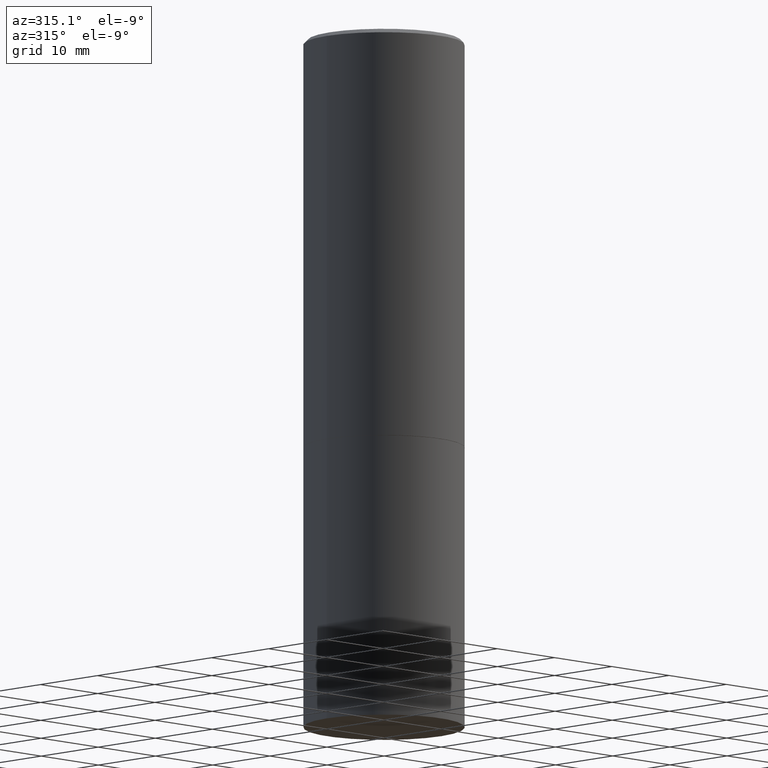
[diagram: clean part render]
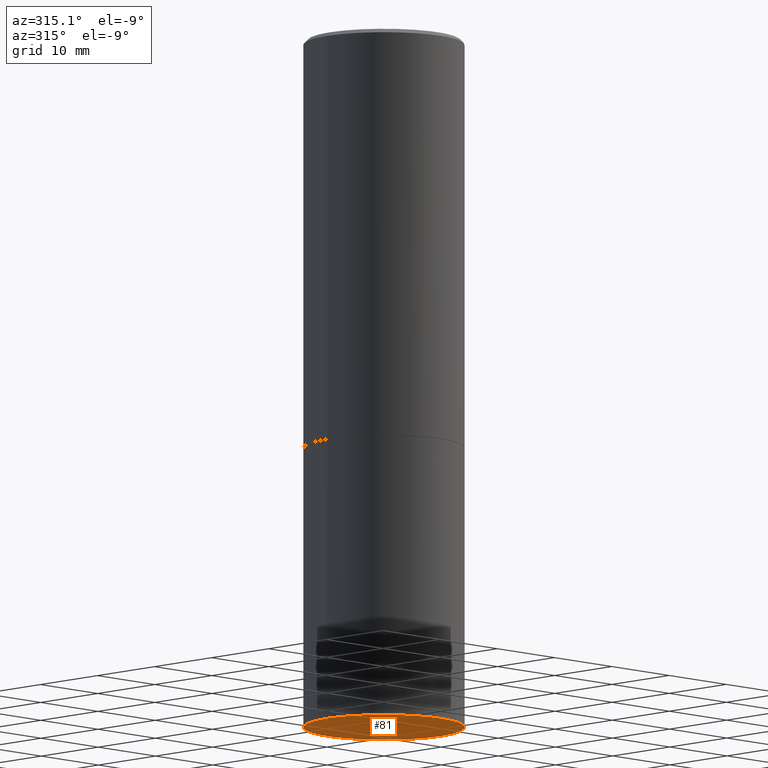
[diagram: same view with one face highlighted and labeled with its STEP entity id]
A machine part, auxiliary view. The second image highlights one B-rep face of the part: STEP entity #81.
In plain terms, the highlighted planar face has unit normal (0, -0, -1).
Its self-contained STEP definition (entity closure, byte-faithful):
#12 = DIRECTION ( 'NONE',  ( 2.438088387897960049E-29, -3.491481338843145188E-15, -1.000000000000000000 ) ) ;
#17 = PLANE ( 'NONE',  #276 ) ;
#24 = ORIENTED_EDGE ( 'NONE', *, *, #108, .F. ) ;
#51 = DIRECTION ( 'NONE',  ( 1.000000000000000000, -6.982962677686267499E-15, 0.000000000000000000 ) ) ;
#61 = EDGE_LOOP ( 'NONE', ( #259, #24 ) ) ;
#70 = AXIS2_PLACEMENT_3D ( 'NONE', #160, #187, #158 ) ;
#81 = ADVANCED_FACE ( 'NONE', ( #152 ), #17, .T. ) ;
#108 = EDGE_CURVE ( 'NONE', #340, #113, #206, .T. ) ;
#113 = VERTEX_POINT ( 'NONE', #355 ) ;
#130 = DIRECTION ( 'NONE',  ( -1.000000000000000000, 6.982962677686265922E-15, -4.876176775795935793E-29 ) ) ;
#152 = FACE_OUTER_BOUND ( 'NONE', #61, .T. ) ;
#158 = DIRECTION ( 'NONE',  ( 1.000000000000000000, -6.982962677686267499E-15, 0.000000000000000000 ) ) ;
#160 = CARTESIAN_POINT ( 'NONE',  ( 8.279868283981636714E-29, -1.182145751705512373E-14, -3.385800000000000143 ) ) ;
#187 = DIRECTION ( 'NONE',  ( -2.445468806185136597E-29, 3.491481338843145583E-15, 1.000000000000000000 ) ) ;
#198 = AXIS2_PLACEMENT_3D ( 'NONE', #338, #248, #51 ) ;
#206 = CIRCLE ( 'NONE', #70, 0.3937000000000000499 ) ;
#248 = DIRECTION ( 'NONE',  ( -2.445468806185136597E-29, 3.491481338843145583E-15, 1.000000000000000000 ) ) ;
#259 = ORIENTED_EDGE ( 'NONE', *, *, #289, .F. ) ;
#276 = AXIS2_PLACEMENT_3D ( 'NONE', #291, #12, #130 ) ;
#289 = EDGE_CURVE ( 'NONE', #113, #340, #309, .T. ) ;
#291 = CARTESIAN_POINT ( 'NONE',  ( 2.749192406205166047E-15, 0.3936999999999882260, -3.385800000000001919 ) ) ;
#309 = CIRCLE ( 'NONE', #198, 0.3937000000000000499 ) ;
#338 = CARTESIAN_POINT ( 'NONE',  ( 8.279868283981636714E-29, -1.182145751705512373E-14, -3.385800000000000143 ) ) ;
#340 = VERTEX_POINT ( 'NONE', #359 ) ;
#355 = CARTESIAN_POINT ( 'NONE',  ( 0.3937000000000000499, -1.457064992326020852E-14, -3.385800000000000143 ) ) ;
#359 = CARTESIAN_POINT ( 'NONE',  ( -0.3937000000000000499, -6.618420123904681571E-15, -3.385800000000000143 ) ) ;